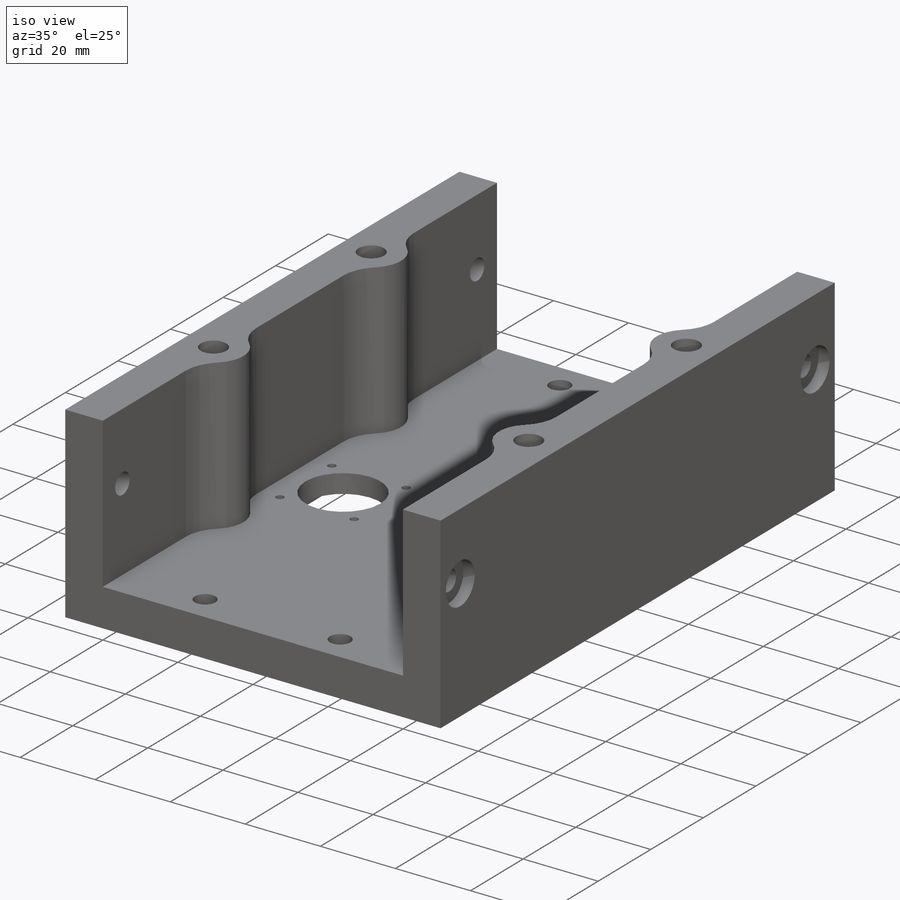
[diagram: iso view]
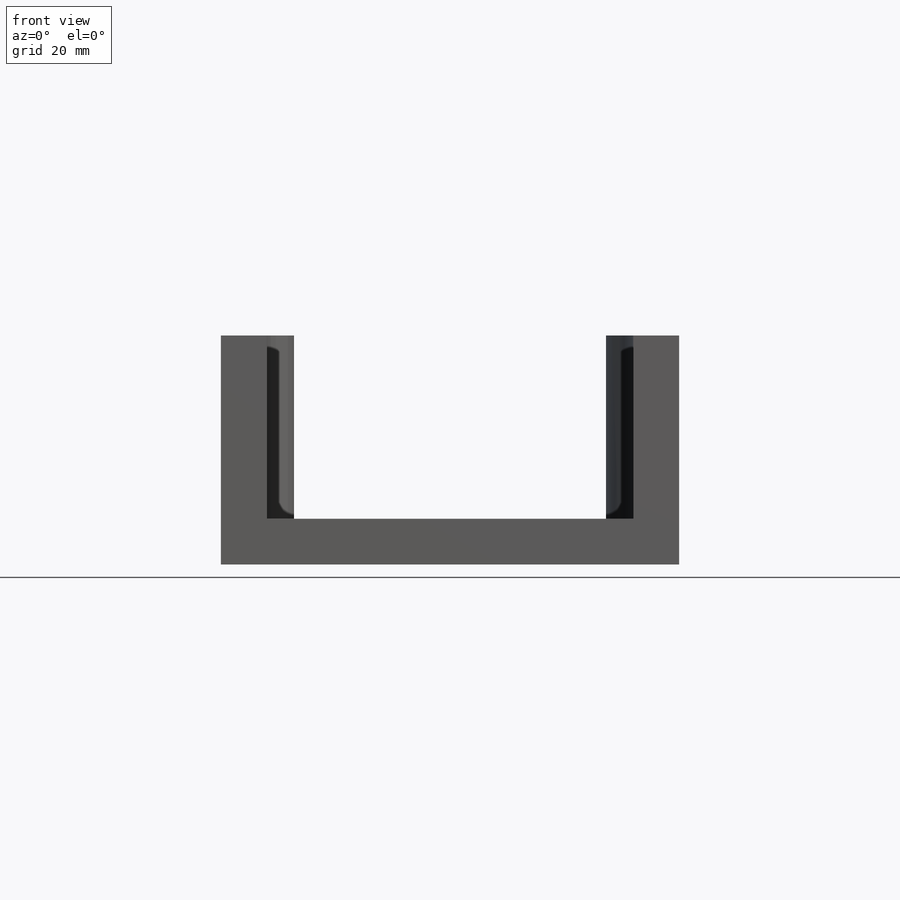
[diagram: front view]
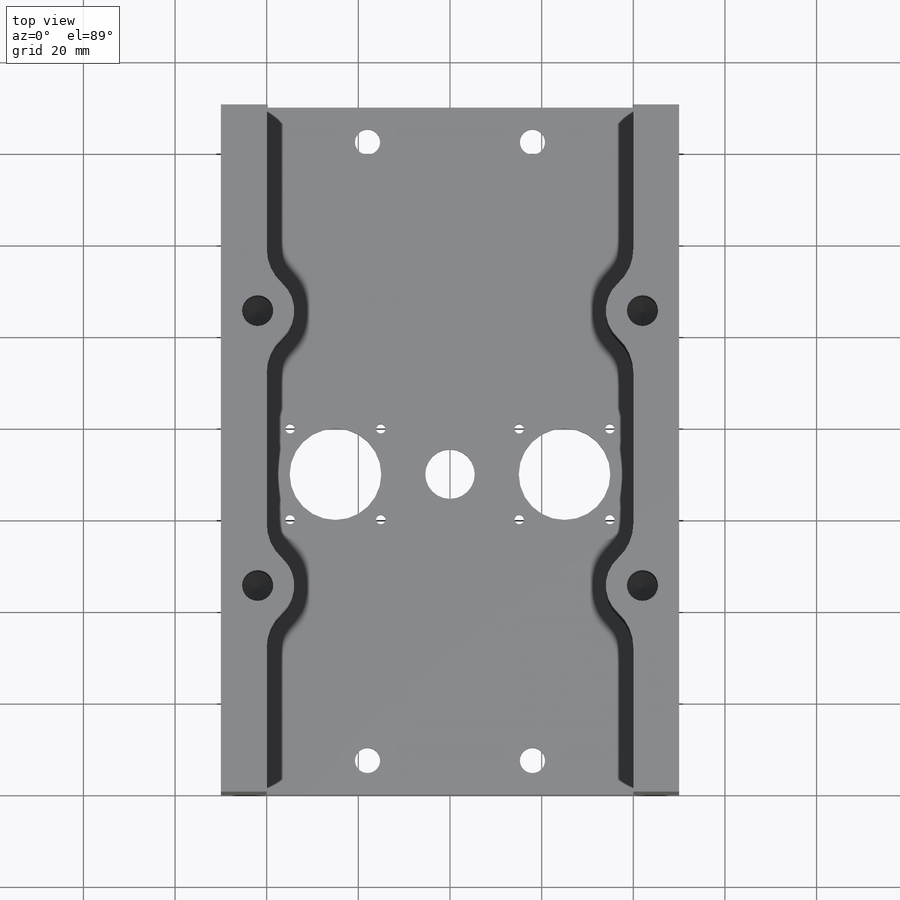
[diagram: top view]
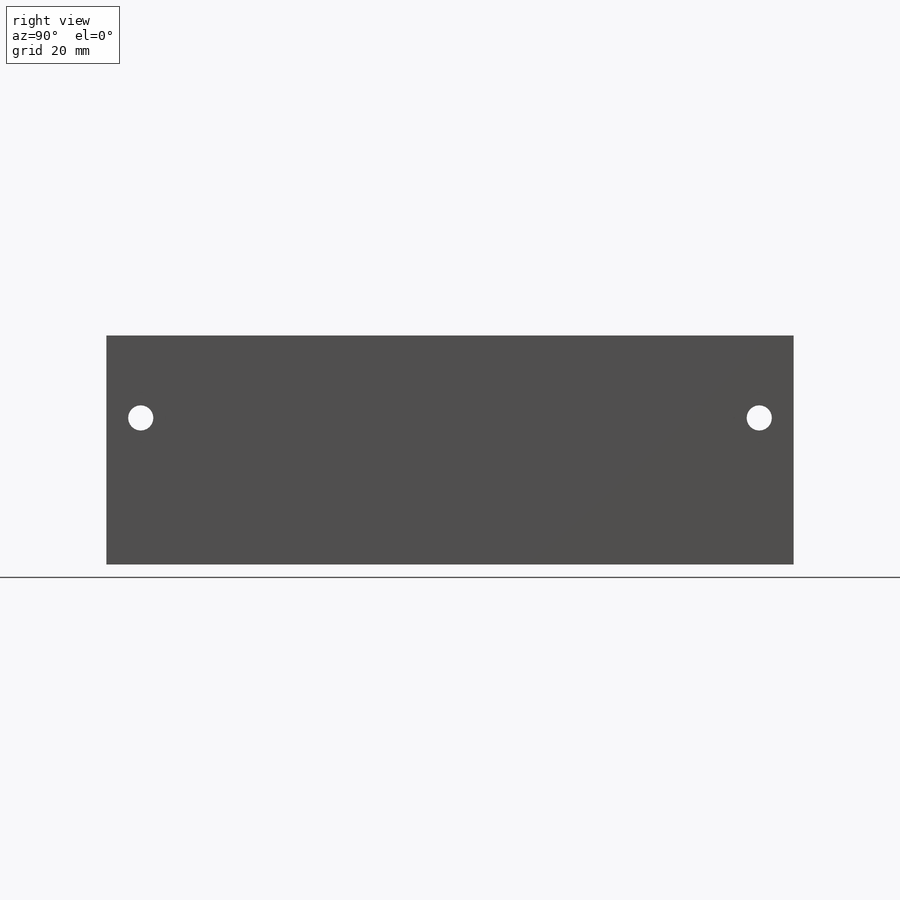
[diagram: right view]
SOLIDWORKS PART (.sldprt)
format: sldprt  version: not decoded by parser v0  size: 495,616 bytes
history: native  units: mm
features: sketch x15, hole x5, mirror x4, extrude x3, fillet x2, thread x2, pattern_linear x2, cut_extrude x2, material x1, plane x1 (+16 scaffold rows collapsed)
feature tree (53):
  scaffold x16  (default folders/planes/origin — collapsed)
  material  "ERTALON 6SA"
  sketch  "Sketch1"  dims[D1=100.0mm D2=50.0mm D3=150.0mm]
  extrude  "Extrude1"  Depth=10mm
  sketch  "Sketch2"  dims[D1=10.0mm D2=10.0mm]
  extrude  "Extrude2"  Depth=40mm
  sketch  "Sketch6"  dims[D1=8.0mm D2=45.0mm D3=45.0mm]
  extrude  "Extrude5"  [1 undecoded]
  mirror  "Mirror2"
  fillet  "Fillet1"  Radius=10mm
  hole  "M8 Tapped Hole1"  Diameter=6.8mm Depth=22mm
  sketch  "Sketch13"
  sketch  "Sketch12"  dims[hole-wizard template sketch: 47 standard entries collapsed; hole parameters kept: c15.Tap Drill Depth=22.0mm c15.D3=~14.816244mm c15.Drill Angle=118.0deg]
  thread  "Hole Thread2"  Diameter=16mm  [1 undecoded]
  pattern_linear  "LPattern1"  Count1=2 Count2=2 Spacing1=60mm Spacing2=84mm
  plane  "Plane2"  Offset=75mm
  sketch  "Sketch16"  dims[c1.D1=75.0mm c1.D2=80.0mm c1.D3=0.0mm c1.D4=15.0mm c2.D3=15.0mm]
  cut_extrude  "Extrude8"  Depth=5mm
  fillet  "Fillet2"  Radius=6mm
  sketch  "Sketch14"  dims[D1=20.0mm D2=25.0mm D3=70.0mm]
  hole  "M2.5 Tapped Hole1"  [1 undecoded]
  sketch  "3DSketch1"  dims[c1.D1=~19.074766mm c1.D2=~19.074766mm c2.D1=9.9mm c2.D2=9.9mm]
  thread  "Hole Thread1"  Diameter=2.5mm  [1 undecoded]
  sketch  "Sketch15"  dims[hole-wizard template sketch: 60 standard entries collapsed; hole parameters kept: c18.Thru Tap Drill Depth=~10.00105mm]
  cut_extrude  "Extrude7"  [1 undecoded]
  pattern_linear  "LPattern2"  Count1=2 Count2=2 Spacing1=19.8mm Spacing2=19.8mm
  mirror  "Mirror4"
  hole  "Ø10.8 (10.8) Diameter Hole1"  Diameter=10.8mm Depth=5mm
  sketch  "Sketch18"  dims[D1=0.0mm]
  sketch  "Sketch17"  dims[hole-wizard template sketch: 59 standard entries collapsed; hole parameters kept: c18.Thru Hole Dia.=10.8mm c18.Thru Hole Depth=5.0mm]
  hole  "CBORE for M5 Hex Socket Head Cap Screw1"  Diameter=5.5mm Depth=10.001mm
  sketch  "Sketch23"  dims[c1.D1=32.0mm c1.D2=~33.559652mm c2.D2=90.0deg c3.D2=7.5mm]
  sketch  "Sketch22"  dims[hole-wizard template sketch: 42 standard entries collapsed; hole parameters kept: c12.Thru Hole Depth=10.001mm c12.C'Bore Dia.=11.0mm c12.C'Bore Depth=3.0mm]
  mirror  "Mirror5"
  hole  "CBORE for M5 Hex Socket Head Cap Screw2"  Diameter=5.5mm Depth=10.00105mm
  sketch  "Sketch25"  dims[D1=22.0mm D2=22.0mm D3=7.5mm]
  sketch  "Sketch24"  dims[hole-wizard template sketch: 42 standard entries collapsed; hole parameters kept: c12.Thru Hole Depth=~10.00105mm c12.C'Bore Dia.=10.0mm c12.C'Bore Depth=5.0mm]
  mirror  "Mirror6"
decode coverage: 27 of 35 modeling features carry decoded parameters
note: ~ marks probable driven/reference dimensions
note: 5 parameter values undecoded
summary: no parameter record found for 3 features; Diameter pulled from absorbed wizard sketch
note: suppression state not decoded; provenance and decode notes live in map.json
